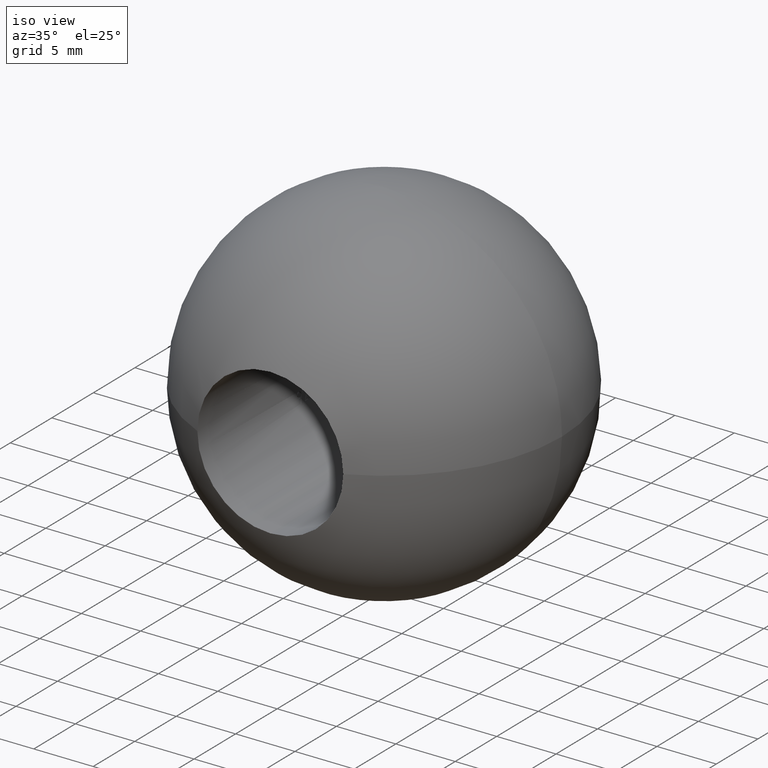
[diagram: clean part render]
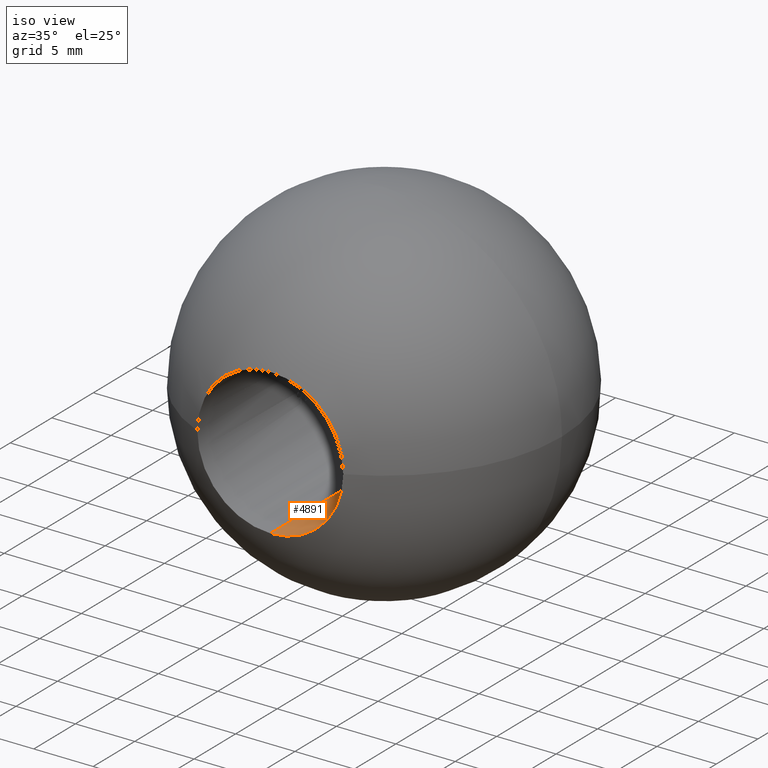
[diagram: same view with one face highlighted and labeled with its STEP entity id]
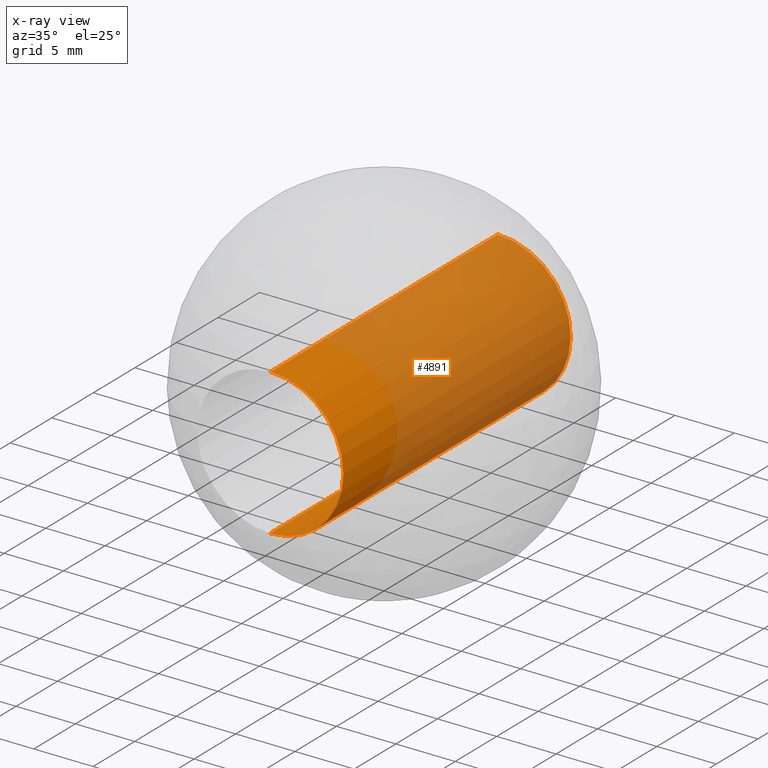
[diagram: x-ray of the same camera — body ghosted, the highlighted face saturated]
A machine part, iso view. The second image highlights one B-rep face of the part: STEP entity #4891.
The next image is the same camera in x-ray: the body ghosted, the highlighted face saturated — about 74% of this face is hidden behind the body in this view.
In plain terms, the highlighted cylindrical surface (partial cylindrical patch) has radius 6.15 mm, axis along (-0, 1, -0).
Its self-contained STEP definition (entity closure, byte-faithful):
#283 = CYLINDRICAL_SURFACE ( 'NONE', #4222, 6.150000000000002100 ) ;
#547 = FACE_OUTER_BOUND ( 'NONE', #7072, .T. ) ;
#903 = CARTESIAN_POINT ( 'NONE',  ( 7.531577814756224000E-016, -13.68128283458828400, -6.150000000000002100 ) ) ;
#1085 = DIRECTION ( 'NONE',  ( -0.0000000000000000000, 1.000000000000000000, -0.0000000000000000000 ) ) ;
#1517 = ORIENTED_EDGE ( 'NONE', *, *, #7623, .F. ) ;
#1535 = EDGE_CURVE ( 'NONE', #8463, #4395, #7163, .T. ) ;
#1924 = AXIS2_PLACEMENT_3D ( 'NONE', #9222, #4374, #10045 ) ;
#2004 = ORIENTED_EDGE ( 'NONE', *, *, #2716, .F. ) ;
#2082 = CIRCLE ( 'NONE', #2522, 6.150000000000002100 ) ;
#2180 = AXIS2_PLACEMENT_3D ( 'NONE', #3237, #8884, #4059 ) ;
#2272 = ORIENTED_EDGE ( 'NONE', *, *, #2585, .T. ) ;
#2412 = CIRCLE ( 'NONE', #1924, 6.150000000000002100 ) ;
#2522 = AXIS2_PLACEMENT_3D ( 'NONE', #5851, #5887, #5919 ) ;
#2585 = EDGE_CURVE ( 'NONE', #4395, #9997, #8808, .T. ) ;
#2630 = VECTOR ( 'NONE', #2764, 1000.000000000000000 ) ;
#2716 = EDGE_CURVE ( 'NONE', #3143, #4288, #2082, .T. ) ;
#2732 = CARTESIAN_POINT ( 'NONE',  ( 0.0000000000000000000, 0.0000000000000000000, 6.150000000000002100 ) ) ;
#2764 = DIRECTION ( 'NONE',  ( -0.0000000000000000000, 1.000000000000000000, -0.0000000000000000000 ) ) ;
#3143 = VERTEX_POINT ( 'NONE', #6294 ) ;
#3184 = EDGE_CURVE ( 'NONE', #4288, #6368, #8170, .T. ) ;
#3237 = CARTESIAN_POINT ( 'NONE',  ( 0.0000000000000000000, 13.68128283458828400, 0.0000000000000000000 ) ) ;
#3334 = CARTESIAN_POINT ( 'NONE',  ( 7.531577814756224000E-016, 0.0000000000000000000, -6.150000000000002100 ) ) ;
#3765 = ORIENTED_EDGE ( 'NONE', *, *, #3184, .F. ) ;
#4059 = DIRECTION ( 'NONE',  ( 0.0000000000000000000, 0.0000000000000000000, 1.000000000000000000 ) ) ;
#4222 = AXIS2_PLACEMENT_3D ( 'NONE', #5864, #1085, #6678 ) ;
#4288 = VERTEX_POINT ( 'NONE', #903 ) ;
#4374 = DIRECTION ( 'NONE',  ( -0.0000000000000000000, 1.000000000000000000, -0.0000000000000000000 ) ) ;
#4379 = ORIENTED_EDGE ( 'NONE', *, *, #5738, .T. ) ;
#4395 = VERTEX_POINT ( 'NONE', #6042 ) ;
#4891 = ADVANCED_FACE ( 'NONE', ( #547 ), #283, .F. ) ;
#5331 = CARTESIAN_POINT ( 'NONE',  ( 0.0000000000000000000, -13.68128283458828400, 6.150000000000002100 ) ) ;
#5738 = EDGE_CURVE ( 'NONE', #9997, #6368, #7495, .T. ) ;
#5759 = CARTESIAN_POINT ( 'NONE',  ( 6.150000000000002100, 13.68128283458828400, 0.0000000000000000000 ) ) ;
#5851 = CARTESIAN_POINT ( 'NONE',  ( 0.0000000000000000000, -13.68128283458828400, 0.0000000000000000000 ) ) ;
#5864 = CARTESIAN_POINT ( 'NONE',  ( 0.0000000000000000000, 0.0000000000000000000, 0.0000000000000000000 ) ) ;
#5887 = DIRECTION ( 'NONE',  ( -0.0000000000000000000, 1.000000000000000000, -0.0000000000000000000 ) ) ;
#5919 = DIRECTION ( 'NONE',  ( 0.0000000000000000000, 0.0000000000000000000, 1.000000000000000000 ) ) ;
#6042 = CARTESIAN_POINT ( 'NONE',  ( 0.0000000000000000000, 13.68128283458828400, 6.150000000000002100 ) ) ;
#6294 = CARTESIAN_POINT ( 'NONE',  ( 6.150000000000002100, -13.68128283458828400, 0.0000000000000000000 ) ) ;
#6316 = CARTESIAN_POINT ( 'NONE',  ( 0.0000000000000000000, 13.68128283458828400, 0.0000000000000000000 ) ) ;
#6368 = VERTEX_POINT ( 'NONE', #9621 ) ;
#6552 = DIRECTION ( 'NONE',  ( -0.0000000000000000000, 1.000000000000000000, -0.0000000000000000000 ) ) ;
#6678 = DIRECTION ( 'NONE',  ( 0.0000000000000000000, 0.0000000000000000000, 1.000000000000000000 ) ) ;
#6935 = DIRECTION ( 'NONE',  ( 0.0000000000000000000, 0.0000000000000000000, 1.000000000000000000 ) ) ;
#6971 = DIRECTION ( 'NONE',  ( -0.0000000000000000000, 1.000000000000000000, -0.0000000000000000000 ) ) ;
#7072 = EDGE_LOOP ( 'NONE', ( #3765, #2004, #1517, #9073, #2272, #4379 ) ) ;
#7163 = LINE ( 'NONE', #2732, #2630 ) ;
#7495 = CIRCLE ( 'NONE', #2180, 6.150000000000002100 ) ;
#7623 = EDGE_CURVE ( 'NONE', #8463, #3143, #2412, .T. ) ;
#8170 = LINE ( 'NONE', #3334, #10318 ) ;
#8463 = VERTEX_POINT ( 'NONE', #5331 ) ;
#8808 = CIRCLE ( 'NONE', #9198, 6.150000000000002100 ) ;
#8884 = DIRECTION ( 'NONE',  ( -0.0000000000000000000, 1.000000000000000000, -0.0000000000000000000 ) ) ;
#9073 = ORIENTED_EDGE ( 'NONE', *, *, #1535, .T. ) ;
#9198 = AXIS2_PLACEMENT_3D ( 'NONE', #6316, #6971, #6935 ) ;
#9222 = CARTESIAN_POINT ( 'NONE',  ( 0.0000000000000000000, -13.68128283458828400, 0.0000000000000000000 ) ) ;
#9621 = CARTESIAN_POINT ( 'NONE',  ( 7.531577814756224000E-016, 13.68128283458828400, -6.150000000000002100 ) ) ;
#9997 = VERTEX_POINT ( 'NONE', #5759 ) ;
#10045 = DIRECTION ( 'NONE',  ( 0.0000000000000000000, 0.0000000000000000000, 1.000000000000000000 ) ) ;
#10318 = VECTOR ( 'NONE', #6552, 1000.000000000000000 ) ;